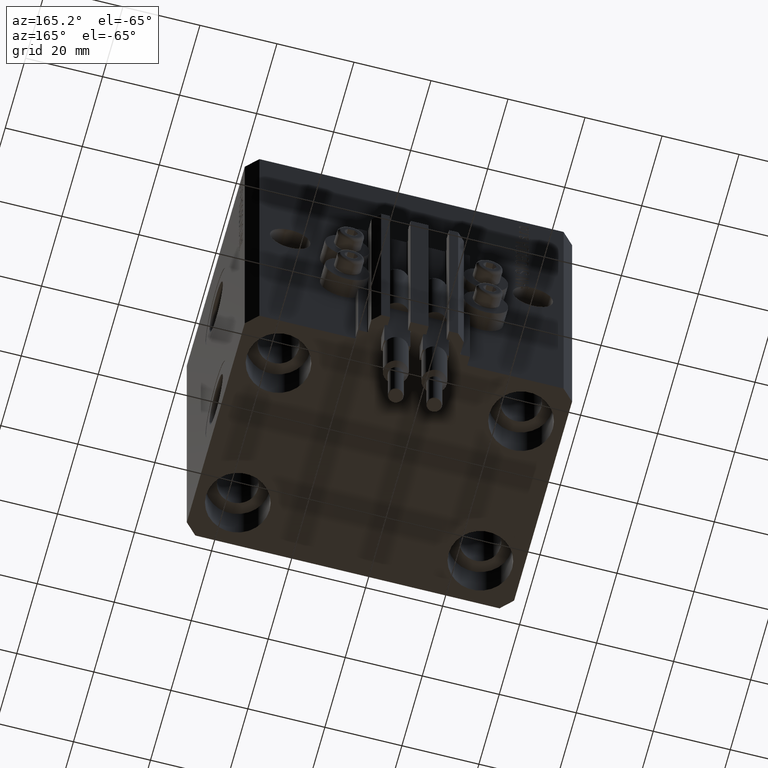
[diagram: clean part render]
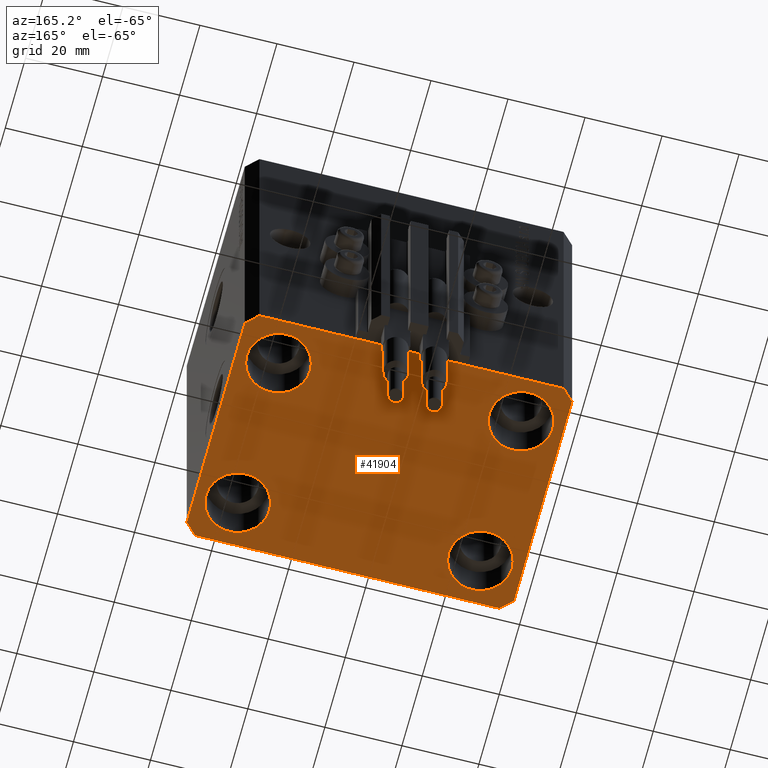
[diagram: same view with one face highlighted and labeled with its STEP entity id]
A machine part, auxiliary view. The second image highlights one B-rep face of the part: STEP entity #41904.
In plain terms, the highlighted planar face has unit normal (0, 0, 1).
Its self-contained STEP definition (entity closure, byte-faithful):
#561 = EDGE_CURVE ( 'NONE', #15104, #4627, #30193, .T. ) ;
#727 = CARTESIAN_POINT ( 'NONE',  ( 39.74999999999999289, 20.00000000000001066, -93.00000000000000000 ) ) ;
#778 = DIRECTION ( 'NONE',  ( 0.7071067811865471286, -0.7071067811865479058, 0.000000000000000000 ) ) ;
#942 = VECTOR ( 'NONE', #11609, 1000.000000000000000 ) ;
#969 = EDGE_LOOP ( 'NONE', ( #34297, #10778 ) ) ;
#1164 = CIRCLE ( 'NONE', #20926, 8.250000000000000000 ) ;
#1325 = DIRECTION ( 'NONE',  ( 1.000000000000000000, 0.000000000000000000, 0.000000000000000000 ) ) ;
#1497 = LINE ( 'NONE', #34679, #3424 ) ;
#1841 = CARTESIAN_POINT ( 'NONE',  ( -39.50000000000000711, -31.50000000000000000, -93.00000000000000000 ) ) ;
#2083 = EDGE_LOOP ( 'NONE', ( #45933, #29823 ) ) ;
#2095 = ORIENTED_EDGE ( 'NONE', *, *, #22124, .F. ) ;
#2602 = EDGE_CURVE ( 'NONE', #19135, #16056, #5362, .T. ) ;
#2702 = CARTESIAN_POINT ( 'NONE',  ( 39.74999999999999289, -20.00000000000000000, -93.00000000000000000 ) ) ;
#3424 = VECTOR ( 'NONE', #778, 1000.000000000000000 ) ;
#4627 = VERTEX_POINT ( 'NONE', #35818 ) ;
#5362 = LINE ( 'NONE', #35562, #42155 ) ;
#5547 = FACE_BOUND ( 'NONE', #2083, .T. ) ;
#6199 = CARTESIAN_POINT ( 'NONE',  ( -39.75000000000000000, -20.00000000000000000, -93.00000000000000000 ) ) ;
#6316 = VERTEX_POINT ( 'NONE', #15704 ) ;
#6492 = EDGE_LOOP ( 'NONE', ( #15721, #9096 ) ) ;
#6530 = AXIS2_PLACEMENT_3D ( 'NONE', #27393, #26907, #16484 ) ;
#6998 = LINE ( 'NONE', #14416, #8497 ) ;
#7276 = CARTESIAN_POINT ( 'NONE',  ( -23.25000000000000000, -20.00000000000000000, -93.00000000000000000 ) ) ;
#7462 = CARTESIAN_POINT ( 'NONE',  ( -42.50000000000000000, 28.50000000000000000, -93.00000000000000000 ) ) ;
#7883 = CARTESIAN_POINT ( 'NONE',  ( 39.50000000000056843, 31.50000000000000000, -93.00000000000000000 ) ) ;
#8310 = EDGE_CURVE ( 'NONE', #29332, #6316, #15317, .T. ) ;
#8457 = AXIS2_PLACEMENT_3D ( 'NONE', #43830, #39391, #16596 ) ;
#8497 = VECTOR ( 'NONE', #25813, 1000.000000000000114 ) ;
#8580 = VECTOR ( 'NONE', #12468, 1000.000000000000000 ) ;
#8932 = VERTEX_POINT ( 'NONE', #7276 ) ;
#9096 = ORIENTED_EDGE ( 'NONE', *, *, #27052, .T. ) ;
#9267 = DIRECTION ( 'NONE',  ( 0.000000000000000000, 0.000000000000000000, 1.000000000000000000 ) ) ;
#9550 = EDGE_CURVE ( 'NONE', #4627, #15104, #1164, .T. ) ;
#9766 = AXIS2_PLACEMENT_3D ( 'NONE', #17267, #46735, #39565 ) ;
#10214 = CARTESIAN_POINT ( 'NONE',  ( 42.50000000000000711, -28.50000000000000355, -93.00000000000000000 ) ) ;
#10233 = PLANE ( 'NONE',  #32223 ) ;
#10778 = ORIENTED_EDGE ( 'NONE', *, *, #561, .T. ) ;
#11609 = DIRECTION ( 'NONE',  ( 8.886653596232072440E-15, 1.000000000000000000, 0.000000000000000000 ) ) ;
#11639 = CARTESIAN_POINT ( 'NONE',  ( 42.50000000000051870, 28.49999999999995381, -93.00000000000000000 ) ) ;
#12225 = EDGE_CURVE ( 'NONE', #26428, #21989, #27339, .T. ) ;
#12468 = DIRECTION ( 'NONE',  ( 0.000000000000000000, -1.000000000000000000, 0.000000000000000000 ) ) ;
#12818 = EDGE_CURVE ( 'NONE', #22756, #8932, #46318, .T. ) ;
#12941 = CARTESIAN_POINT ( 'NONE',  ( -31.50000000000000000, -20.00000000000000000, -93.00000000000000000 ) ) ;
#13271 = DIRECTION ( 'NONE',  ( 1.000000000000000000, 0.000000000000000000, 0.000000000000000000 ) ) ;
#13623 = CARTESIAN_POINT ( 'NONE',  ( -39.50000000000000711, 31.50000000000000000, -93.00000000000000000 ) ) ;
#13971 = CIRCLE ( 'NONE', #8457, 8.249999999999992895 ) ;
#14051 = VERTEX_POINT ( 'NONE', #7462 ) ;
#14416 = CARTESIAN_POINT ( 'NONE',  ( 42.50000000000051870, 28.49999999999995381, -93.00000000000000000 ) ) ;
#14992 = ORIENTED_EDGE ( 'NONE', *, *, #15123, .T. ) ;
#15104 = VERTEX_POINT ( 'NONE', #31945 ) ;
#15123 = EDGE_CURVE ( 'NONE', #6316, #29332, #13971, .T. ) ;
#15180 = AXIS2_PLACEMENT_3D ( 'NONE', #48663, #29855, #44972 ) ;
#15317 = CIRCLE ( 'NONE', #9766, 8.249999999999992895 ) ;
#15704 = CARTESIAN_POINT ( 'NONE',  ( 23.25000000000000355, 20.00000000000001066, -93.00000000000000000 ) ) ;
#15721 = ORIENTED_EDGE ( 'NONE', *, *, #12225, .T. ) ;
#15849 = EDGE_CURVE ( 'NONE', #44935, #19135, #6998, .T. ) ;
#16056 = VERTEX_POINT ( 'NONE', #13623 ) ;
#16170 = DIRECTION ( 'NONE',  ( -0.000000000000000000, -0.000000000000000000, 1.000000000000000000 ) ) ;
#16356 = CARTESIAN_POINT ( 'NONE',  ( -31.50000000000000000, 20.00000000000000000, -93.00000000000000000 ) ) ;
#16484 = DIRECTION ( 'NONE',  ( 1.000000000000000000, 0.000000000000000000, 0.000000000000000000 ) ) ;
#16596 = DIRECTION ( 'NONE',  ( 1.000000000000000000, 0.000000000000000000, 0.000000000000000000 ) ) ;
#17267 = CARTESIAN_POINT ( 'NONE',  ( 31.50000000000000000, 20.00000000000001066, -93.00000000000000000 ) ) ;
#17356 = EDGE_CURVE ( 'NONE', #18754, #17403, #28333, .T. ) ;
#17403 = VERTEX_POINT ( 'NONE', #47147 ) ;
#18093 = CARTESIAN_POINT ( 'NONE',  ( -42.50000000000000000, -28.50000000000000000, -93.00000000000000000 ) ) ;
#18124 = LINE ( 'NONE', #40177, #32014 ) ;
#18754 = VERTEX_POINT ( 'NONE', #34176 ) ;
#19113 = EDGE_LOOP ( 'NONE', ( #24557, #45549, #2095, #48387, #42571, #40024, #37035, #40255 ) ) ;
#19135 = VERTEX_POINT ( 'NONE', #7883 ) ;
#19823 = DIRECTION ( 'NONE',  ( -0.000000000000000000, -0.000000000000000000, 1.000000000000000000 ) ) ;
#20238 = DIRECTION ( 'NONE',  ( 0.7071067811865483499, 0.7071067811865466846, 0.000000000000000000 ) ) ;
#20926 = AXIS2_PLACEMENT_3D ( 'NONE', #16356, #19823, #31463 ) ;
#20949 = AXIS2_PLACEMENT_3D ( 'NONE', #12941, #16170, #1325 ) ;
#21989 = VERTEX_POINT ( 'NONE', #2702 ) ;
#22124 = EDGE_CURVE ( 'NONE', #34205, #44935, #30422, .T. ) ;
#22226 = CARTESIAN_POINT ( 'NONE',  ( -31.50000000000000000, -20.00000000000000000, -93.00000000000000000 ) ) ;
#22756 = VERTEX_POINT ( 'NONE', #6199 ) ;
#24557 = ORIENTED_EDGE ( 'NONE', *, *, #2602, .F. ) ;
#24852 = DIRECTION ( 'NONE',  ( 1.000000000000000000, 0.000000000000000000, -0.000000000000000000 ) ) ;
#24908 = DIRECTION ( 'NONE',  ( -1.000000000000000000, 0.000000000000000000, 0.000000000000000000 ) ) ;
#24925 = EDGE_CURVE ( 'NONE', #48527, #18754, #1497, .T. ) ;
#25813 = DIRECTION ( 'NONE',  ( -0.7071067811865356934, 0.7071067811865594521, 0.000000000000000000 ) ) ;
#26067 = DIRECTION ( 'NONE',  ( -0.000000000000000000, -0.000000000000000000, 1.000000000000000000 ) ) ;
#26428 = VERTEX_POINT ( 'NONE', #32734 ) ;
#26907 = DIRECTION ( 'NONE',  ( -0.000000000000000000, -0.000000000000000000, 1.000000000000000000 ) ) ;
#27052 = EDGE_CURVE ( 'NONE', #21989, #26428, #27876, .T. ) ;
#27339 = CIRCLE ( 'NONE', #36026, 8.249999999999992895 ) ;
#27393 = CARTESIAN_POINT ( 'NONE',  ( 31.50000000000000000, -20.00000000000000000, -93.00000000000000000 ) ) ;
#27876 = CIRCLE ( 'NONE', #6530, 8.249999999999992895 ) ;
#28333 = LINE ( 'NONE', #1841, #43311 ) ;
#28582 = EDGE_CURVE ( 'NONE', #17403, #34205, #32110, .T. ) ;
#29332 = VERTEX_POINT ( 'NONE', #727 ) ;
#29647 = CIRCLE ( 'NONE', #20949, 8.250000000000000000 ) ;
#29823 = ORIENTED_EDGE ( 'NONE', *, *, #31876, .T. ) ;
#29855 = DIRECTION ( 'NONE',  ( -0.000000000000000000, -0.000000000000000000, 1.000000000000000000 ) ) ;
#30193 = CIRCLE ( 'NONE', #15180, 8.250000000000000000 ) ;
#30422 = LINE ( 'NONE', #45529, #942 ) ;
#31463 = DIRECTION ( 'NONE',  ( 1.000000000000000000, 0.000000000000000000, 0.000000000000000000 ) ) ;
#31876 = EDGE_CURVE ( 'NONE', #8932, #22756, #29647, .T. ) ;
#31945 = CARTESIAN_POINT ( 'NONE',  ( -23.25000000000000000, 20.00000000000000000, -93.00000000000000000 ) ) ;
#31964 = EDGE_CURVE ( 'NONE', #16056, #14051, #18124, .T. ) ;
#32014 = VECTOR ( 'NONE', #33219, 1000.000000000000000 ) ;
#32110 = LINE ( 'NONE', #43748, #32648 ) ;
#32223 = AXIS2_PLACEMENT_3D ( 'NONE', #47864, #9267, #24852 ) ;
#32518 = FACE_OUTER_BOUND ( 'NONE', #19113, .T. ) ;
#32648 = VECTOR ( 'NONE', #20238, 1000.000000000000000 ) ;
#32734 = CARTESIAN_POINT ( 'NONE',  ( 23.25000000000000355, -20.00000000000000000, -93.00000000000000000 ) ) ;
#33219 = DIRECTION ( 'NONE',  ( -0.7071067811865471286, -0.7071067811865479058, 0.000000000000000000 ) ) ;
#34176 = CARTESIAN_POINT ( 'NONE',  ( -39.50000000000000711, -31.50000000000000000, -93.00000000000000000 ) ) ;
#34205 = VERTEX_POINT ( 'NONE', #10214 ) ;
#34297 = ORIENTED_EDGE ( 'NONE', *, *, #9550, .T. ) ;
#34679 = CARTESIAN_POINT ( 'NONE',  ( -42.50000000000000000, -28.50000000000000000, -93.00000000000000000 ) ) ;
#35562 = CARTESIAN_POINT ( 'NONE',  ( 39.50000000000056843, 31.50000000000000000, -93.00000000000000000 ) ) ;
#35818 = CARTESIAN_POINT ( 'NONE',  ( -39.75000000000000000, 20.00000000000000000, -93.00000000000000000 ) ) ;
#36026 = AXIS2_PLACEMENT_3D ( 'NONE', #48332, #26067, #13271 ) ;
#36064 = AXIS2_PLACEMENT_3D ( 'NONE', #22226, #37335, #45503 ) ;
#36481 = FACE_BOUND ( 'NONE', #39908, .T. ) ;
#37035 = ORIENTED_EDGE ( 'NONE', *, *, #43743, .F. ) ;
#37335 = DIRECTION ( 'NONE',  ( -0.000000000000000000, -0.000000000000000000, 1.000000000000000000 ) ) ;
#39391 = DIRECTION ( 'NONE',  ( -0.000000000000000000, -0.000000000000000000, 1.000000000000000000 ) ) ;
#39565 = DIRECTION ( 'NONE',  ( 1.000000000000000000, 0.000000000000000000, 0.000000000000000000 ) ) ;
#39908 = EDGE_LOOP ( 'NONE', ( #14992, #40979 ) ) ;
#40024 = ORIENTED_EDGE ( 'NONE', *, *, #24925, .F. ) ;
#40177 = CARTESIAN_POINT ( 'NONE',  ( -39.50000000000000711, 31.50000000000000000, -93.00000000000000000 ) ) ;
#40255 = ORIENTED_EDGE ( 'NONE', *, *, #31964, .F. ) ;
#40979 = ORIENTED_EDGE ( 'NONE', *, *, #8310, .T. ) ;
#41904 = ADVANCED_FACE ( 'NONE', ( #5547, #43182, #36481, #43918, #32518 ), #10233, .F. ) ;
#42155 = VECTOR ( 'NONE', #24908, 1000.000000000000000 ) ;
#42571 = ORIENTED_EDGE ( 'NONE', *, *, #17356, .F. ) ;
#43182 = FACE_BOUND ( 'NONE', #6492, .T. ) ;
#43311 = VECTOR ( 'NONE', #46656, 1000.000000000000000 ) ;
#43743 = EDGE_CURVE ( 'NONE', #14051, #48527, #46622, .T. ) ;
#43748 = CARTESIAN_POINT ( 'NONE',  ( 39.50000000000000711, -31.50000000000000000, -93.00000000000000000 ) ) ;
#43830 = CARTESIAN_POINT ( 'NONE',  ( 31.50000000000000000, 20.00000000000001066, -93.00000000000000000 ) ) ;
#43918 = FACE_BOUND ( 'NONE', #969, .T. ) ;
#44935 = VERTEX_POINT ( 'NONE', #11639 ) ;
#44972 = DIRECTION ( 'NONE',  ( 1.000000000000000000, 0.000000000000000000, 0.000000000000000000 ) ) ;
#45503 = DIRECTION ( 'NONE',  ( 1.000000000000000000, 0.000000000000000000, 0.000000000000000000 ) ) ;
#45529 = CARTESIAN_POINT ( 'NONE',  ( 42.50000000000000711, -28.50000000000000355, -93.00000000000000000 ) ) ;
#45549 = ORIENTED_EDGE ( 'NONE', *, *, #15849, .F. ) ;
#45933 = ORIENTED_EDGE ( 'NONE', *, *, #12818, .T. ) ;
#46318 = CIRCLE ( 'NONE', #36064, 8.250000000000000000 ) ;
#46383 = CARTESIAN_POINT ( 'NONE',  ( -42.50000000000000000, 28.50000000000000000, -93.00000000000000000 ) ) ;
#46622 = LINE ( 'NONE', #46383, #8580 ) ;
#46656 = DIRECTION ( 'NONE',  ( 1.000000000000000000, 0.000000000000000000, 0.000000000000000000 ) ) ;
#46735 = DIRECTION ( 'NONE',  ( -0.000000000000000000, -0.000000000000000000, 1.000000000000000000 ) ) ;
#47147 = CARTESIAN_POINT ( 'NONE',  ( 39.50000000000000711, -31.50000000000000000, -93.00000000000000000 ) ) ;
#47864 = CARTESIAN_POINT ( 'NONE',  ( 0.000000000000000000, 0.000000000000000000, -93.00000000000000000 ) ) ;
#48332 = CARTESIAN_POINT ( 'NONE',  ( 31.50000000000000000, -20.00000000000000000, -93.00000000000000000 ) ) ;
#48387 = ORIENTED_EDGE ( 'NONE', *, *, #28582, .F. ) ;
#48527 = VERTEX_POINT ( 'NONE', #18093 ) ;
#48663 = CARTESIAN_POINT ( 'NONE',  ( -31.50000000000000000, 20.00000000000000000, -93.00000000000000000 ) ) ;